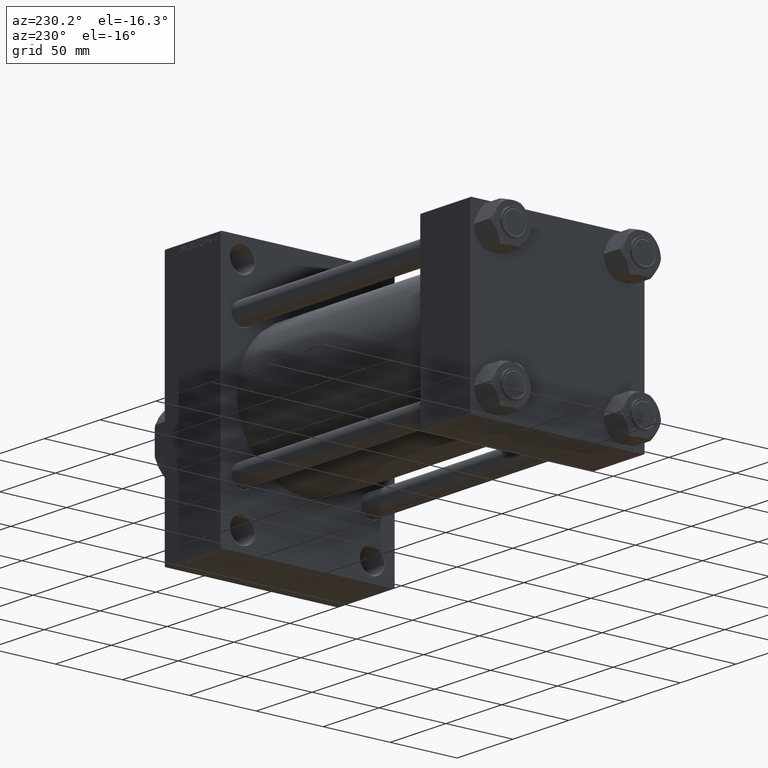
[diagram: clean part render]
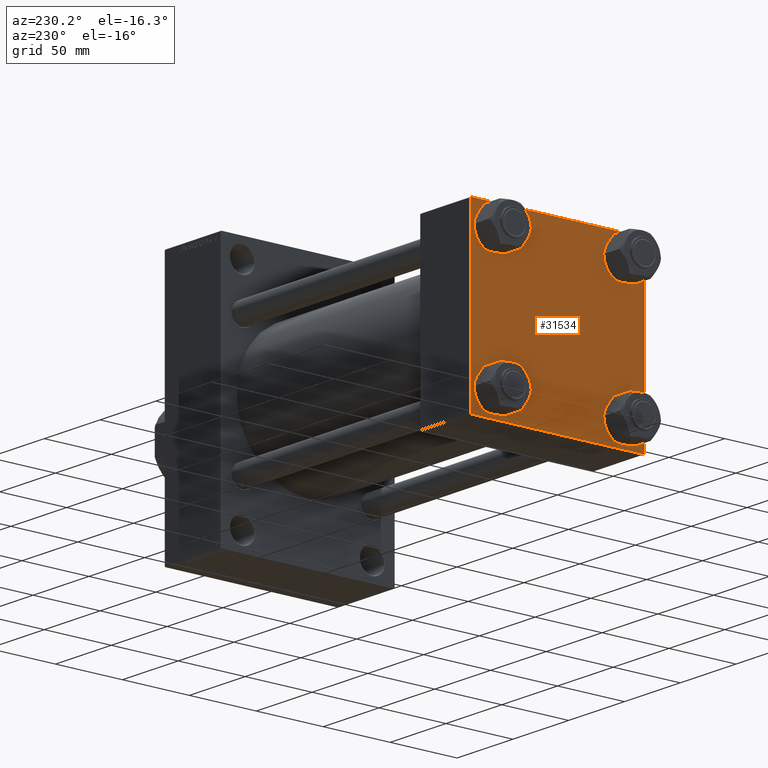
[diagram: same view with one face highlighted and labeled with its STEP entity id]
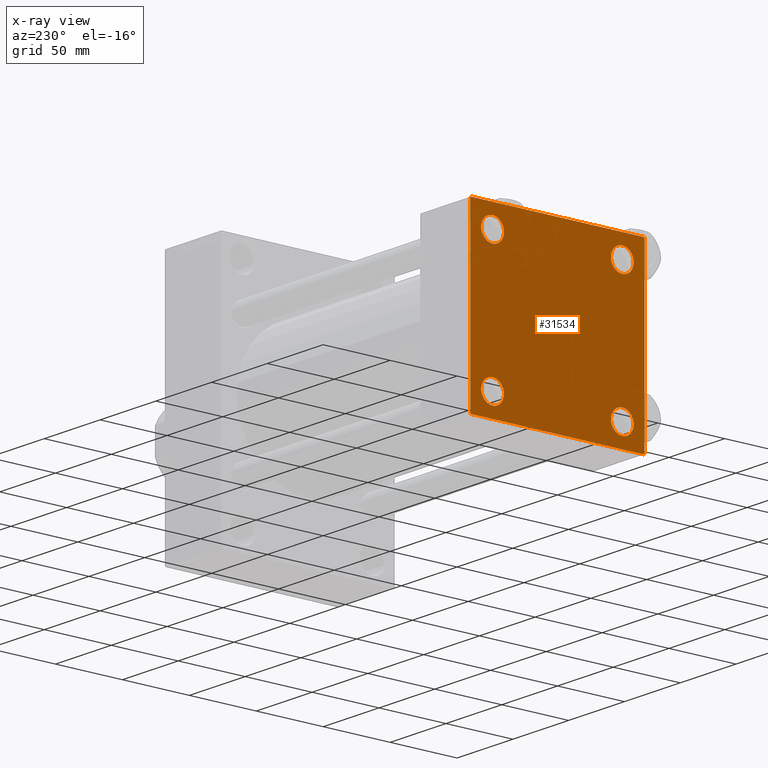
[diagram: x-ray of the same camera — body ghosted, the highlighted face saturated]
A machine part, auxiliary view. The second image highlights one B-rep face of the part: STEP entity #31534.
The next image is the same camera in x-ray: the body ghosted, the highlighted face saturated — about 0% of this face is hidden behind the body in this view.
In plain terms, the highlighted planar face has unit normal (-1, 0, 0).
Its self-contained STEP definition (entity closure, byte-faithful):
#75 = LINE ( 'NONE', #21544, #25897 ) ;
#157 = FACE_BOUND ( 'NONE', #23547, .T. ) ;
#469 = AXIS2_PLACEMENT_3D ( 'NONE', #29865, #23292, #25973 ) ;
#1085 = CIRCLE ( 'NONE', #32728, 8.500000000000007105 ) ;
#1276 = DIRECTION ( 'NONE',  ( 0.000000000000000000, 0.000000000000000000, 1.000000000000000000 ) ) ;
#1356 = CARTESIAN_POINT ( 'NONE',  ( 0.000000000000000000, -48.44999999999999574, 56.95000000000003837 ) ) ;
#1454 = AXIS2_PLACEMENT_3D ( 'NONE', #9015, #26895, #45728 ) ;
#1553 = DIRECTION ( 'NONE',  ( 0.000000000000000000, 0.000000000000000000, 1.000000000000000000 ) ) ;
#1924 = ORIENTED_EDGE ( 'NONE', *, *, #3853, .T. ) ;
#1975 = CARTESIAN_POINT ( 'NONE',  ( 0.000000000000000000, -48.44999999999999574, 48.45000000000003126 ) ) ;
#2210 = CARTESIAN_POINT ( 'NONE',  ( 0.000000000000000000, -48.44999999999999574, -39.95000000000001705 ) ) ;
#2548 = CARTESIAN_POINT ( 'NONE',  ( 0.000000000000000000, -64.75000000000176215, -64.74999999999816680 ) ) ;
#3014 = CARTESIAN_POINT ( 'NONE',  ( 0.000000000000000000, 48.45000000000000995, 56.95000000000002416 ) ) ;
#3257 = CIRCLE ( 'NONE', #6318, 8.500000000000007105 ) ;
#3292 = EDGE_CURVE ( 'NONE', #29261, #22641, #20875, .T. ) ;
#3304 = DIRECTION ( 'NONE',  ( -1.000000000000000000, 0.000000000000000000, -0.000000000000000000 ) ) ;
#3476 = CARTESIAN_POINT ( 'NONE',  ( 0.000000000000000000, 65.00000000000000000, 65.00000000000001421 ) ) ;
#3796 = VECTOR ( 'NONE', #9956, 1000.000000000000114 ) ;
#3853 = EDGE_CURVE ( 'NONE', #26103, #8646, #24165, .T. ) ;
#4098 = ORIENTED_EDGE ( 'NONE', *, *, #7745, .T. ) ;
#4182 = DIRECTION ( 'NONE',  ( 0.000000000000000000, 0.000000000000000000, -1.000000000000000000 ) ) ;
#5172 = DIRECTION ( 'NONE',  ( 0.000000000000000000, 0.000000000000000000, 1.000000000000000000 ) ) ;
#5184 = DIRECTION ( 'NONE',  ( 1.000000000000000000, -0.000000000000000000, 0.000000000000000000 ) ) ;
#5303 = EDGE_CURVE ( 'NONE', #10506, #9662, #18614, .T. ) ;
#5638 = CARTESIAN_POINT ( 'NONE',  ( 0.000000000000000000, 48.45000000000000995, 48.45000000000001705 ) ) ;
#6058 = ORIENTED_EDGE ( 'NONE', *, *, #22496, .F. ) ;
#6160 = CARTESIAN_POINT ( 'NONE',  ( 0.000000000000000000, -65.00000000000000000, -64.49999999999991473 ) ) ;
#6318 = AXIS2_PLACEMENT_3D ( 'NONE', #38312, #42390, #19924 ) ;
#6408 = DIRECTION ( 'NONE',  ( 0.000000000000000000, -0.7071067811865279218, 0.7071067811865671127 ) ) ;
#6718 = CARTESIAN_POINT ( 'NONE',  ( 0.000000000000000000, -64.49999999999997158, 65.00000000000000000 ) ) ;
#6928 = CARTESIAN_POINT ( 'NONE',  ( 0.000000000000000000, 0.000000000000000000, 0.000000000000000000 ) ) ;
#7401 = LINE ( 'NONE', #25499, #27296 ) ;
#7745 = EDGE_CURVE ( 'NONE', #13607, #26914, #44391, .T. ) ;
#8151 = CARTESIAN_POINT ( 'NONE',  ( 0.000000000000000000, 64.49999999999997158, 65.00000000000001421 ) ) ;
#8180 = CIRCLE ( 'NONE', #469, 8.500000000000007105 ) ;
#8637 = EDGE_CURVE ( 'NONE', #25539, #26080, #75, .T. ) ;
#8646 = VERTEX_POINT ( 'NONE', #18397 ) ;
#9015 = CARTESIAN_POINT ( 'NONE',  ( 0.000000000000000000, -48.44999999999999574, -48.45000000000003126 ) ) ;
#9427 = EDGE_LOOP ( 'NONE', ( #37975, #29462, #26901, #16669, #6058, #39816, #13457, #20510 ) ) ;
#9506 = LINE ( 'NONE', #3476, #41881 ) ;
#9662 = VERTEX_POINT ( 'NONE', #23570 ) ;
#9956 = DIRECTION ( 'NONE',  ( -0.000000000000000000, -0.7071067811865474617, -0.7071067811865474617 ) ) ;
#10428 = CARTESIAN_POINT ( 'NONE',  ( 0.000000000000000000, 64.74999999999997158, -64.74999999999997158 ) ) ;
#10461 = LINE ( 'NONE', #39922, #18867 ) ;
#10506 = VERTEX_POINT ( 'NONE', #8151 ) ;
#11012 = PLANE ( 'NONE',  #22081 ) ;
#11154 = VECTOR ( 'NONE', #29760, 1000.000000000000114 ) ;
#11729 = EDGE_CURVE ( 'NONE', #8646, #26103, #8180, .T. ) ;
#11906 = CARTESIAN_POINT ( 'NONE',  ( 0.000000000000000000, -48.44999999999999574, -56.95000000000003837 ) ) ;
#13359 = AXIS2_PLACEMENT_3D ( 'NONE', #38261, #5184, #1553 ) ;
#13457 = ORIENTED_EDGE ( 'NONE', *, *, #20536, .F. ) ;
#13607 = VERTEX_POINT ( 'NONE', #3014 ) ;
#14580 = CARTESIAN_POINT ( 'NONE',  ( 0.000000000000000000, 48.45000000000000995, -48.45000000000001705 ) ) ;
#14820 = CARTESIAN_POINT ( 'NONE',  ( 0.000000000000000000, -48.44999999999999574, 39.95000000000001705 ) ) ;
#16378 = EDGE_CURVE ( 'NONE', #45783, #29165, #3257, .T. ) ;
#16669 = ORIENTED_EDGE ( 'NONE', *, *, #3292, .T. ) ;
#17090 = CARTESIAN_POINT ( 'NONE',  ( 0.000000000000000000, 48.45000000000000995, 39.95000000000000284 ) ) ;
#17766 = FACE_BOUND ( 'NONE', #29929, .T. ) ;
#17903 = CARTESIAN_POINT ( 'NONE',  ( 0.000000000000000000, 64.74999999999998579, 64.74999999999998579 ) ) ;
#18006 = FACE_OUTER_BOUND ( 'NONE', #9427, .T. ) ;
#18397 = CARTESIAN_POINT ( 'NONE',  ( 0.000000000000000000, 48.45000000000000995, -56.95000000000002416 ) ) ;
#18614 = LINE ( 'NONE', #17903, #11154 ) ;
#18663 = DIRECTION ( 'NONE',  ( 1.000000000000000000, -0.000000000000000000, 0.000000000000000000 ) ) ;
#18867 = VECTOR ( 'NONE', #20838, 1000.000000000000000 ) ;
#19070 = AXIS2_PLACEMENT_3D ( 'NONE', #33290, #25303, #44148 ) ;
#19527 = EDGE_LOOP ( 'NONE', ( #1924, #41261 ) ) ;
#19692 = AXIS2_PLACEMENT_3D ( 'NONE', #5638, #35340, #5172 ) ;
#19924 = DIRECTION ( 'NONE',  ( 0.000000000000000000, 0.000000000000000000, 1.000000000000000000 ) ) ;
#20299 = EDGE_LOOP ( 'NONE', ( #4098, #41180 ) ) ;
#20331 = VECTOR ( 'NONE', #6408, 1000.000000000000000 ) ;
#20510 = ORIENTED_EDGE ( 'NONE', *, *, #5303, .T. ) ;
#20536 = EDGE_CURVE ( 'NONE', #10506, #26080, #9506, .T. ) ;
#20838 = DIRECTION ( 'NONE',  ( 0.000000000000000000, -1.000000000000000000, -1.067522139062650425E-16 ) ) ;
#20875 = LINE ( 'NONE', #2548, #20331 ) ;
#21274 = CARTESIAN_POINT ( 'NONE',  ( 0.000000000000000000, -64.49999999999994316, -65.00000000000000000 ) ) ;
#21544 = CARTESIAN_POINT ( 'NONE',  ( -0.000000000000000000, -64.74999999999819522, 64.75000000000179057 ) ) ;
#21557 = VERTEX_POINT ( 'NONE', #32768 ) ;
#22081 = AXIS2_PLACEMENT_3D ( 'NONE', #6928, #3304, #43623 ) ;
#22109 = FACE_BOUND ( 'NONE', #20299, .T. ) ;
#22496 = EDGE_CURVE ( 'NONE', #25539, #22641, #7401, .T. ) ;
#22641 = VERTEX_POINT ( 'NONE', #6160 ) ;
#23292 = DIRECTION ( 'NONE',  ( 1.000000000000000000, -0.000000000000000000, 0.000000000000000000 ) ) ;
#23547 = EDGE_LOOP ( 'NONE', ( #30410, #47344 ) ) ;
#23570 = CARTESIAN_POINT ( 'NONE',  ( 0.000000000000000000, 65.00000000000000000, 64.49999999999998579 ) ) ;
#24165 = CIRCLE ( 'NONE', #45010, 8.500000000000007105 ) ;
#24524 = EDGE_CURVE ( 'NONE', #30085, #38098, #36514, .T. ) ;
#24587 = CIRCLE ( 'NONE', #1454, 8.500000000000007105 ) ;
#24645 = VECTOR ( 'NONE', #4182, 1000.000000000000000 ) ;
#25303 = DIRECTION ( 'NONE',  ( 1.000000000000000000, -0.000000000000000000, 0.000000000000000000 ) ) ;
#25390 = EDGE_CURVE ( 'NONE', #38098, #30085, #1085, .T. ) ;
#25402 = ORIENTED_EDGE ( 'NONE', *, *, #25390, .T. ) ;
#25499 = CARTESIAN_POINT ( 'NONE',  ( 0.000000000000000000, -65.00000000000000000, 65.00000000000000000 ) ) ;
#25539 = VERTEX_POINT ( 'NONE', #40342 ) ;
#25897 = VECTOR ( 'NONE', #36302, 1000.000000000000000 ) ;
#25973 = DIRECTION ( 'NONE',  ( 0.000000000000000000, 0.000000000000000000, 1.000000000000000000 ) ) ;
#26080 = VERTEX_POINT ( 'NONE', #6718 ) ;
#26103 = VERTEX_POINT ( 'NONE', #35936 ) ;
#26807 = CIRCLE ( 'NONE', #19070, 8.500000000000007105 ) ;
#26895 = DIRECTION ( 'NONE',  ( 1.000000000000000000, -0.000000000000000000, 0.000000000000000000 ) ) ;
#26901 = ORIENTED_EDGE ( 'NONE', *, *, #27633, .T. ) ;
#26914 = VERTEX_POINT ( 'NONE', #17090 ) ;
#27296 = VECTOR ( 'NONE', #40244, 1000.000000000000000 ) ;
#27633 = EDGE_CURVE ( 'NONE', #44815, #29261, #10461, .T. ) ;
#28793 = LINE ( 'NONE', #10428, #3796 ) ;
#29165 = VERTEX_POINT ( 'NONE', #11906 ) ;
#29261 = VERTEX_POINT ( 'NONE', #21274 ) ;
#29462 = ORIENTED_EDGE ( 'NONE', *, *, #43146, .T. ) ;
#29760 = DIRECTION ( 'NONE',  ( 0.000000000000000000, 0.7071067811865474617, -0.7071067811865474617 ) ) ;
#29864 = FACE_BOUND ( 'NONE', #19527, .T. ) ;
#29865 = CARTESIAN_POINT ( 'NONE',  ( 0.000000000000000000, 48.45000000000000995, -48.45000000000001705 ) ) ;
#29929 = EDGE_LOOP ( 'NONE', ( #25402, #30887 ) ) ;
#30085 = VERTEX_POINT ( 'NONE', #14820 ) ;
#30410 = ORIENTED_EDGE ( 'NONE', *, *, #16378, .T. ) ;
#30887 = ORIENTED_EDGE ( 'NONE', *, *, #24524, .T. ) ;
#31534 = ADVANCED_FACE ( 'NONE', ( #17766, #157, #29864, #22109, #18006 ), #11012, .T. ) ;
#32728 = AXIS2_PLACEMENT_3D ( 'NONE', #1975, #38911, #1276 ) ;
#32768 = CARTESIAN_POINT ( 'NONE',  ( 0.000000000000000000, 65.00000000000000000, -64.49999999999995737 ) ) ;
#33165 = LINE ( 'NONE', #43784, #24645 ) ;
#33290 = CARTESIAN_POINT ( 'NONE',  ( 0.000000000000000000, 48.45000000000000995, 48.45000000000001705 ) ) ;
#33421 = DIRECTION ( 'NONE',  ( 0.000000000000000000, 0.000000000000000000, 1.000000000000000000 ) ) ;
#33841 = EDGE_CURVE ( 'NONE', #26914, #13607, #26807, .T. ) ;
#35340 = DIRECTION ( 'NONE',  ( 1.000000000000000000, -0.000000000000000000, 0.000000000000000000 ) ) ;
#35936 = CARTESIAN_POINT ( 'NONE',  ( 0.000000000000000000, 48.45000000000000995, -39.95000000000000284 ) ) ;
#36302 = DIRECTION ( 'NONE',  ( -0.000000000000000000, 0.7071067811865672237, 0.7071067811865279218 ) ) ;
#36514 = CIRCLE ( 'NONE', #13359, 8.500000000000007105 ) ;
#37975 = ORIENTED_EDGE ( 'NONE', *, *, #45533, .T. ) ;
#38098 = VERTEX_POINT ( 'NONE', #1356 ) ;
#38261 = CARTESIAN_POINT ( 'NONE',  ( 0.000000000000000000, -48.44999999999999574, 48.45000000000003126 ) ) ;
#38312 = CARTESIAN_POINT ( 'NONE',  ( 0.000000000000000000, -48.44999999999999574, -48.45000000000003126 ) ) ;
#38911 = DIRECTION ( 'NONE',  ( 1.000000000000000000, -0.000000000000000000, 0.000000000000000000 ) ) ;
#39816 = ORIENTED_EDGE ( 'NONE', *, *, #8637, .T. ) ;
#39922 = CARTESIAN_POINT ( 'NONE',  ( 0.000000000000000000, 65.00000000000000000, -64.99999999999998579 ) ) ;
#39926 = DIRECTION ( 'NONE',  ( 0.000000000000000000, -1.000000000000000000, -1.067522139062650425E-16 ) ) ;
#40244 = DIRECTION ( 'NONE',  ( 0.000000000000000000, 0.000000000000000000, -1.000000000000000000 ) ) ;
#40342 = CARTESIAN_POINT ( 'NONE',  ( 0.000000000000000000, -65.00000000000000000, 64.50000000000000000 ) ) ;
#40456 = EDGE_CURVE ( 'NONE', #29165, #45783, #24587, .T. ) ;
#41180 = ORIENTED_EDGE ( 'NONE', *, *, #33841, .T. ) ;
#41261 = ORIENTED_EDGE ( 'NONE', *, *, #11729, .T. ) ;
#41881 = VECTOR ( 'NONE', #39926, 1000.000000000000000 ) ;
#42390 = DIRECTION ( 'NONE',  ( 1.000000000000000000, -0.000000000000000000, 0.000000000000000000 ) ) ;
#42761 = CARTESIAN_POINT ( 'NONE',  ( 0.000000000000000000, 64.49999999999997158, -64.99999999999998579 ) ) ;
#43146 = EDGE_CURVE ( 'NONE', #21557, #44815, #28793, .T. ) ;
#43623 = DIRECTION ( 'NONE',  ( -0.000000000000000000, 0.000000000000000000, 1.000000000000000000 ) ) ;
#43784 = CARTESIAN_POINT ( 'NONE',  ( 0.000000000000000000, 65.00000000000000000, 65.00000000000001421 ) ) ;
#44148 = DIRECTION ( 'NONE',  ( 0.000000000000000000, 0.000000000000000000, 1.000000000000000000 ) ) ;
#44391 = CIRCLE ( 'NONE', #19692, 8.500000000000007105 ) ;
#44815 = VERTEX_POINT ( 'NONE', #42761 ) ;
#45010 = AXIS2_PLACEMENT_3D ( 'NONE', #14580, #18663, #33421 ) ;
#45533 = EDGE_CURVE ( 'NONE', #9662, #21557, #33165, .T. ) ;
#45728 = DIRECTION ( 'NONE',  ( 0.000000000000000000, 0.000000000000000000, 1.000000000000000000 ) ) ;
#45783 = VERTEX_POINT ( 'NONE', #2210 ) ;
#47344 = ORIENTED_EDGE ( 'NONE', *, *, #40456, .T. ) ;